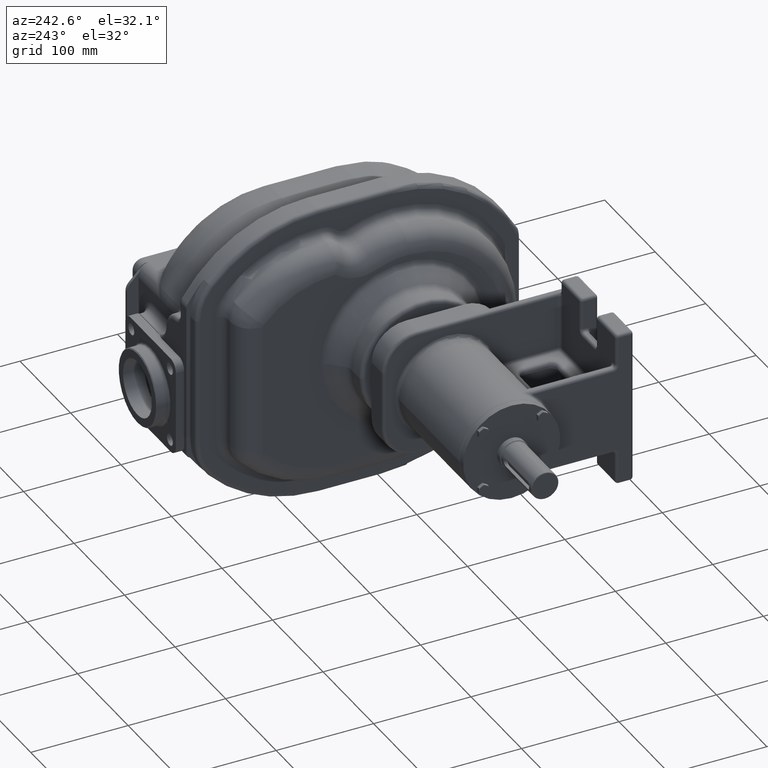
[diagram: clean part render]
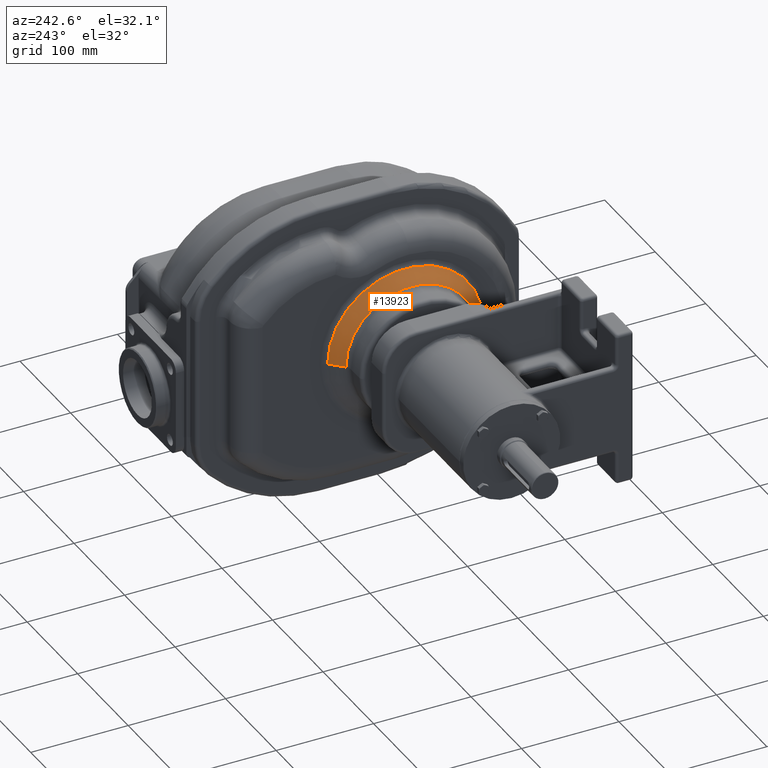
[diagram: same view with one face highlighted and labeled with its STEP entity id]
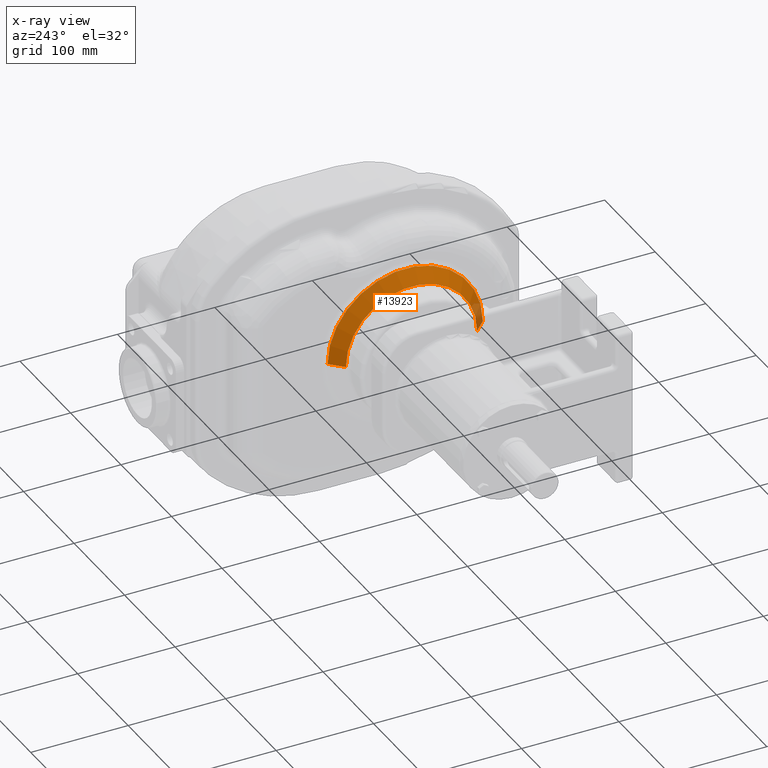
[diagram: x-ray of the same camera — body ghosted, the highlighted face saturated]
A machine part, auxiliary view. The second image highlights one B-rep face of the part: STEP entity #13923.
The next image is the same camera in x-ray: the body ghosted, the highlighted face saturated — about 5% of this face is hidden behind the body in this view.
In plain terms, the highlighted conical surface has half-angle 45 deg.
Its self-contained STEP definition (entity closure, byte-faithful):
#2911=CARTESIAN_POINT('',(-7.684314575051E1,0.E0,0.E0));
#2912=DIRECTION('',(-1.E0,0.E0,0.E0));
#2913=DIRECTION('',(0.E0,-1.E0,0.E0));
#2914=AXIS2_PLACEMENT_3D('',#2911,#2912,#2913);
#2916=DIRECTION('',(7.071067811865E-1,-7.071067811865E-1,0.E0));
#2917=VECTOR('',#2916,1.741421356237E1);
#2918=CARTESIAN_POINT('',(-8.915685424949E1,-6.734314575051E1,0.E0));
#2919=LINE('',#2918,#2917);
#2920=CARTESIAN_POINT('',(-8.915685424949E1,0.E0,0.E0));
#2921=DIRECTION('',(-1.E0,0.E0,0.E0));
#2922=DIRECTION('',(0.E0,-1.E0,0.E0));
#2923=AXIS2_PLACEMENT_3D('',#2920,#2921,#2922);
#2925=DIRECTION('',(7.071067811865E-1,7.071067811865E-1,0.E0));
#2926=VECTOR('',#2925,1.741421356237E1);
#2927=CARTESIAN_POINT('',(-8.915685424949E1,6.734314575051E1,0.E0));
#2928=LINE('',#2927,#2926);
#8608=CARTESIAN_POINT('',(-7.684314575051E1,7.965685424949E1,0.E0));
#8609=CARTESIAN_POINT('',(-7.684314575051E1,-7.965685424949E1,0.E0));
#8610=VERTEX_POINT('',#8608);
#8611=VERTEX_POINT('',#8609);
#8612=CARTESIAN_POINT('',(-8.915685424949E1,6.734314575051E1,0.E0));
#8613=CARTESIAN_POINT('',(-8.915685424949E1,-6.734314575051E1,0.E0));
#8614=VERTEX_POINT('',#8612);
#8615=VERTEX_POINT('',#8613);
#13909=CARTESIAN_POINT('',(-8.3E1,0.E0,0.E0));
#13910=DIRECTION('',(1.E0,0.E0,0.E0));
#13911=DIRECTION('',(0.E0,-1.E0,0.E0));
#13912=AXIS2_PLACEMENT_3D('',#13909,#13910,#13911);
#13913=CONICAL_SURFACE('',#13912,7.35E1,4.5E1);
#13914=ORIENTED_EDGE('',*,*,#13903,.F.);
#13916=ORIENTED_EDGE('',*,*,#13915,.F.);
#13918=ORIENTED_EDGE('',*,*,#13917,.T.);
#13920=ORIENTED_EDGE('',*,*,#13919,.T.);
#13921=EDGE_LOOP('',(#13914,#13916,#13918,#13920));
#13922=FACE_OUTER_BOUND('',#13921,.F.);
#13923=ADVANCED_FACE('',(#13922),#13913,.T.);
#2915=CIRCLE('',#2914,7.965685424949E1);
#2924=CIRCLE('',#2923,6.734314575051E1);
#13903=EDGE_CURVE('',#8611,#8610,#2915,.T.);
#13915=EDGE_CURVE('',#8615,#8611,#2919,.T.);
#13917=EDGE_CURVE('',#8615,#8614,#2924,.T.);
#13919=EDGE_CURVE('',#8614,#8610,#2928,.T.);